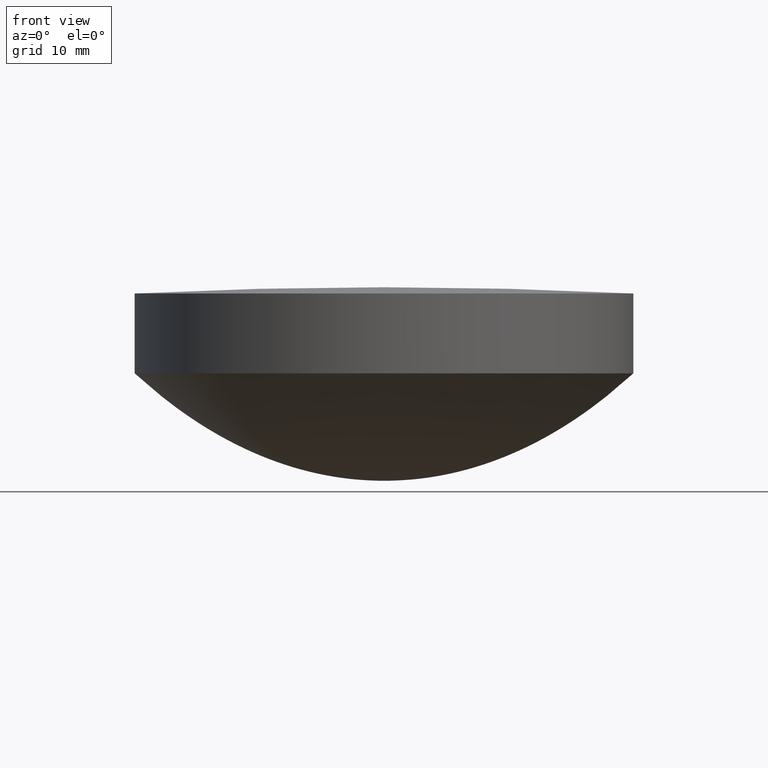
[diagram: clean part render]
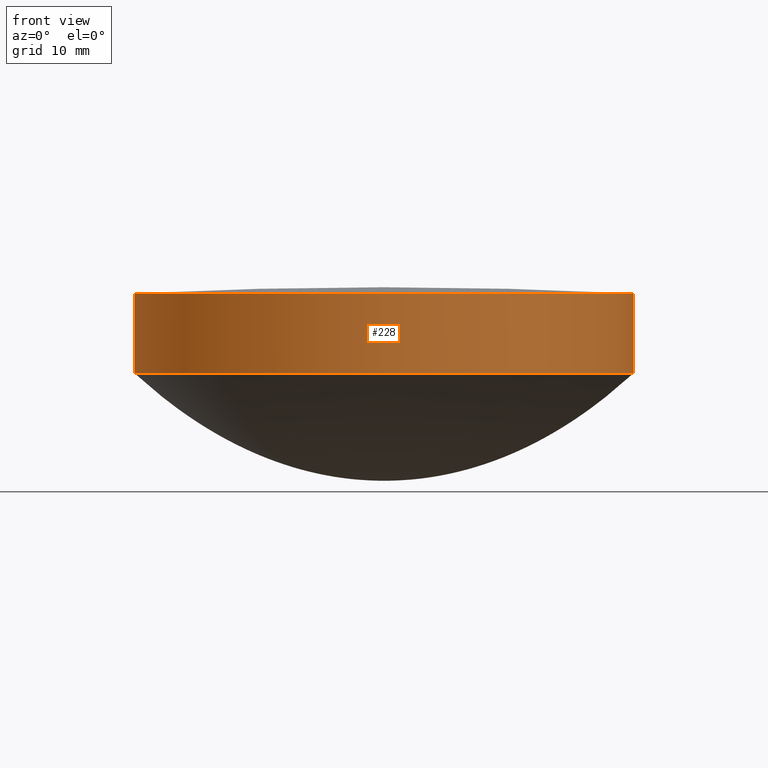
[diagram: same view with one face highlighted and labeled with its STEP entity id]
A machine part, front view. The second image highlights one B-rep face of the part: STEP entity #228.
In plain terms, the highlighted cylindrical surface (partial cylindrical patch) has radius 25 mm, axis along (0, 0, 1).
Its self-contained STEP definition (entity closure, byte-faithful):
#20 = ORIENTED_EDGE ( 'NONE', *, *, #494, .T. ) ;
#22 = ORIENTED_EDGE ( 'NONE', *, *, #600, .T. ) ;
#34 = CARTESIAN_POINT ( 'NONE',  ( 24.99999999999999645, -25.00000000000025935, 10.76935298651310546 ) ) ;
#39 = CARTESIAN_POINT ( 'NONE',  ( -25.00000000000000000, 3.061616997868379887E-15, 10.76935298651310191 ) ) ;
#44 = VERTEX_POINT ( 'NONE', #444 ) ;
#48 = VERTEX_POINT ( 'NONE', #602 ) ;
#70 = CARTESIAN_POINT ( 'NONE',  ( 25.00000000000000000, 0.000000000000000000, 18.77460888595450328 ) ) ;
#75 = VERTEX_POINT ( 'NONE', #336 ) ;
#79 = ORIENTED_EDGE ( 'NONE', *, *, #473, .F. ) ;
#87 = ORIENTED_EDGE ( 'NONE', *, *, #521, .F. ) ;
#93 = CARTESIAN_POINT ( 'NONE',  ( 25.00000000000000000, -25.00000000000000000, 18.77460888595448907 ) ) ;
#113 = CARTESIAN_POINT ( 'NONE',  ( -25.00000000000000000, 3.061616997868379887E-15, 10.76935298651310191 ) ) ;
#135 = CARTESIAN_POINT ( 'NONE',  ( -25.00000000000000000, 3.061616997868379887E-15, 18.77460888595450328 ) ) ;
#139 =( BOUNDED_CURVE ( )  B_SPLINE_CURVE ( 2, ( #135, #471, #522, #93, #239 ),
 .UNSPECIFIED., .F., .F. ) 
 B_SPLINE_CURVE_WITH_KNOTS ( ( 3, 2, 3 ),
 ( 3.141592653589790007, 4.712388980384689674, 6.283185307179590673 ),
 .UNSPECIFIED. ) 
 CURVE ( )  GEOMETRIC_REPRESENTATION_ITEM ( )  RATIONAL_B_SPLINE_CURVE ( ( 1.000000000000000000, 0.7071067811865480168, 1.000000000000000000, 0.7071067811865480168, 1.000000000000000000 ) ) 
 REPRESENTATION_ITEM ( '' )  );
#168 = CARTESIAN_POINT ( 'NONE',  ( -1.283157961456979886E-14, -25.00000000000000000, 10.76935298651310191 ) ) ;
#177 = VERTEX_POINT ( 'NONE', #646 ) ;
#194 = FACE_OUTER_BOUND ( 'NONE', #652, .T. ) ;
#228 = ADVANCED_FACE ( 'NONE', ( #194 ), #312, .T. ) ;
#239 = CARTESIAN_POINT ( 'NONE',  ( 25.00000000000000000, 0.000000000000000000, 18.77460888595450328 ) ) ;
#280 = CARTESIAN_POINT ( 'NONE',  ( -25.00000000000000355, -24.99999999999974420, 10.76935298651310724 ) ) ;
#312 = CYLINDRICAL_SURFACE ( 'NONE', #551, 25.00000000000000000 ) ;
#336 = CARTESIAN_POINT ( 'NONE',  ( 25.00000000000000000, 0.000000000000000000, 18.77460888595450328 ) ) ;
#362 = CARTESIAN_POINT ( 'NONE',  ( -1.283157961456979886E-14, -25.00000000000000000, 10.76935298651310191 ) ) ;
#364 = DIRECTION ( 'NONE',  ( 0.000000000000000000, 0.000000000000000000, 1.000000000000000000 ) ) ;
#371 = B_SPLINE_CURVE_WITH_KNOTS ( 'NONE', 1,
 ( #443, #70 ),
 .UNSPECIFIED., .F., .F.,
 ( 2, 2 ),
 ( 0.000000000000000000, 1.000000000000000000 ),
 .UNSPECIFIED. ) ;
#403 = VERTEX_POINT ( 'NONE', #565 ) ;
#408 = B_SPLINE_CURVE_WITH_KNOTS ( 'NONE', 1,
 ( #39, #676 ),
 .UNSPECIFIED., .F., .F.,
 ( 2, 2 ),
 ( 0.000000000000000000, 1.000000000000000000 ),
 .UNSPECIFIED. ) ;
#443 = CARTESIAN_POINT ( 'NONE',  ( 25.00000000000000000, 0.000000000000000000, 10.76935298651310191 ) ) ;
#444 = CARTESIAN_POINT ( 'NONE',  ( 25.00000000000000000, 0.000000000000000000, 10.76935298651310191 ) ) ;
#471 = CARTESIAN_POINT ( 'NONE',  ( -25.00000000000000000, -25.00000000000000000, 18.77460888595448907 ) ) ;
#473 = EDGE_CURVE ( 'NONE', #403, #75, #139, .T. ) ;
#494 = EDGE_CURVE ( 'NONE', #177, #44, #576, .T. ) ;
#521 = EDGE_CURVE ( 'NONE', #48, #403, #408, .T. ) ;
#522 = CARTESIAN_POINT ( 'NONE',  ( -4.592425496802569633E-15, -25.00000000000000000, 18.77460888595450328 ) ) ;
#551 = AXIS2_PLACEMENT_3D ( 'NONE', #624, #364, #567 ) ;
#556 = ORIENTED_EDGE ( 'NONE', *, *, #667, .T. ) ;
#565 = CARTESIAN_POINT ( 'NONE',  ( -25.00000000000000000, 3.061616997868379887E-15, 18.77460888595450328 ) ) ;
#567 = DIRECTION ( 'NONE',  ( -1.000000000000000000, -3.749152351173350293E-16, 0.000000000000000000 ) ) ;
#576 =( BOUNDED_CURVE ( )  B_SPLINE_CURVE ( 2, ( #362, #34, #577 ),
 .UNSPECIFIED., .F., .F. ) 
 B_SPLINE_CURVE_WITH_KNOTS ( ( 3, 3 ),
 ( 4.712388980384678128, 6.283185307179590673 ),
 .UNSPECIFIED. ) 
 CURVE ( )  GEOMETRIC_REPRESENTATION_ITEM ( )  RATIONAL_B_SPLINE_CURVE ( ( 1.000000000000002220, 0.7071067811865459074, 1.000000000000000000 ) ) 
 REPRESENTATION_ITEM ( '' )  );
#577 = CARTESIAN_POINT ( 'NONE',  ( 25.00000000000000000, 0.000000000000000000, 10.76935298651310191 ) ) ;
#600 = EDGE_CURVE ( 'NONE', #44, #75, #371, .T. ) ;
#602 = CARTESIAN_POINT ( 'NONE',  ( -25.00000000000000000, 3.061616997868379887E-15, 10.76935298651310191 ) ) ;
#624 = CARTESIAN_POINT ( 'NONE',  ( 7.105427357600998703E-15, 1.243449787580179743E-14, 10.76935298651310191 ) ) ;
#646 = CARTESIAN_POINT ( 'NONE',  ( -1.283157961456979886E-14, -25.00000000000000000, 10.76935298651310191 ) ) ;
#652 = EDGE_LOOP ( 'NONE', ( #556, #20, #22, #79, #87 ) ) ;
#662 =( BOUNDED_CURVE ( )  B_SPLINE_CURVE ( 2, ( #113, #280, #168 ),
 .UNSPECIFIED., .F., .T. ) 
 B_SPLINE_CURVE_WITH_KNOTS ( ( 3, 3 ),
 ( 3.141592653589790007, 4.712388980384678128 ),
 .UNSPECIFIED. ) 
 CURVE ( )  GEOMETRIC_REPRESENTATION_ITEM ( )  RATIONAL_B_SPLINE_CURVE ( ( 1.000000000000000000, 0.7071067811865501263, 0.9999999999999978906 ) ) 
 REPRESENTATION_ITEM ( '' )  );
#667 = EDGE_CURVE ( 'NONE', #48, #177, #662, .T. ) ;
#676 = CARTESIAN_POINT ( 'NONE',  ( -25.00000000000000000, 3.061616997868379887E-15, 18.77460888595450328 ) ) ;